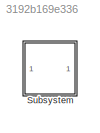
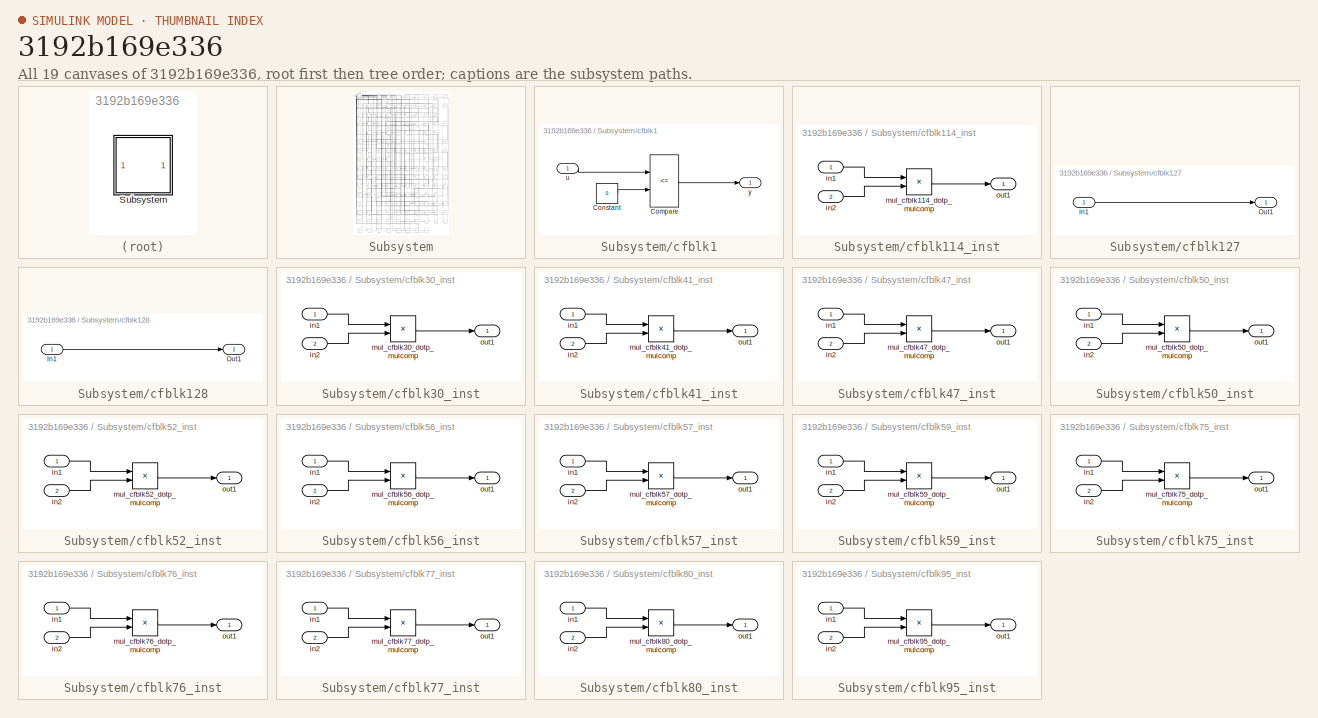
[diagram: thumbnail index - all 19 canvases of the model, root first then tree order]
MODEL slx_3192b169e336
KIND model
CONFIG AbsTol = auto
CONFIG EnableMultiTasking = off
CONFIG FixedStep = auto
CONFIG MaxStep = auto
CONFIG MinStep = auto
CONFIG RelTol = 1e-3
CONFIG SampleTimeConstraint = Unconstrained
CONFIG SolverName = VariableStepAuto
CONFIG StartTime = 0.0
CONFIG StopTime = 10.0
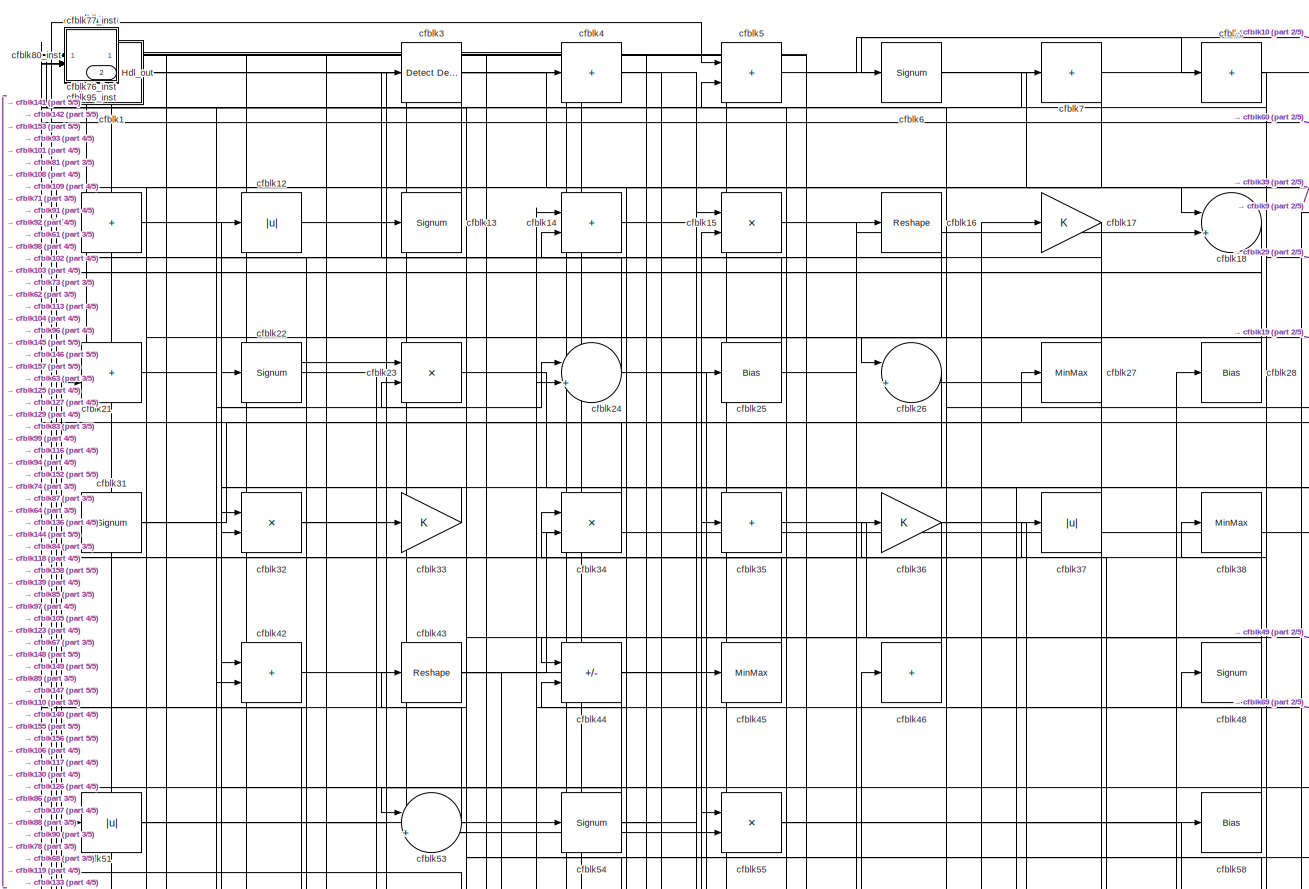
[diagram: Subsystem - part 1/5, full width, top band]
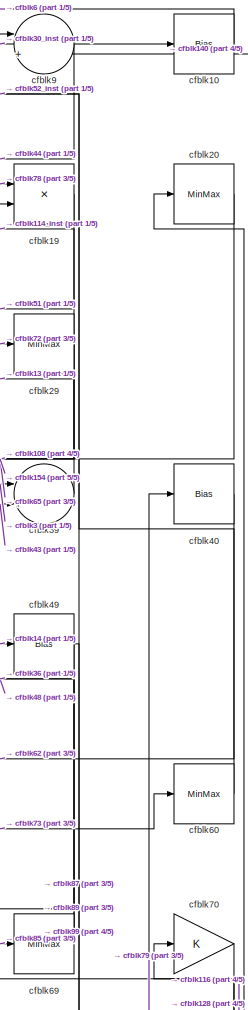
[diagram: Subsystem - part 2/5, top right region]
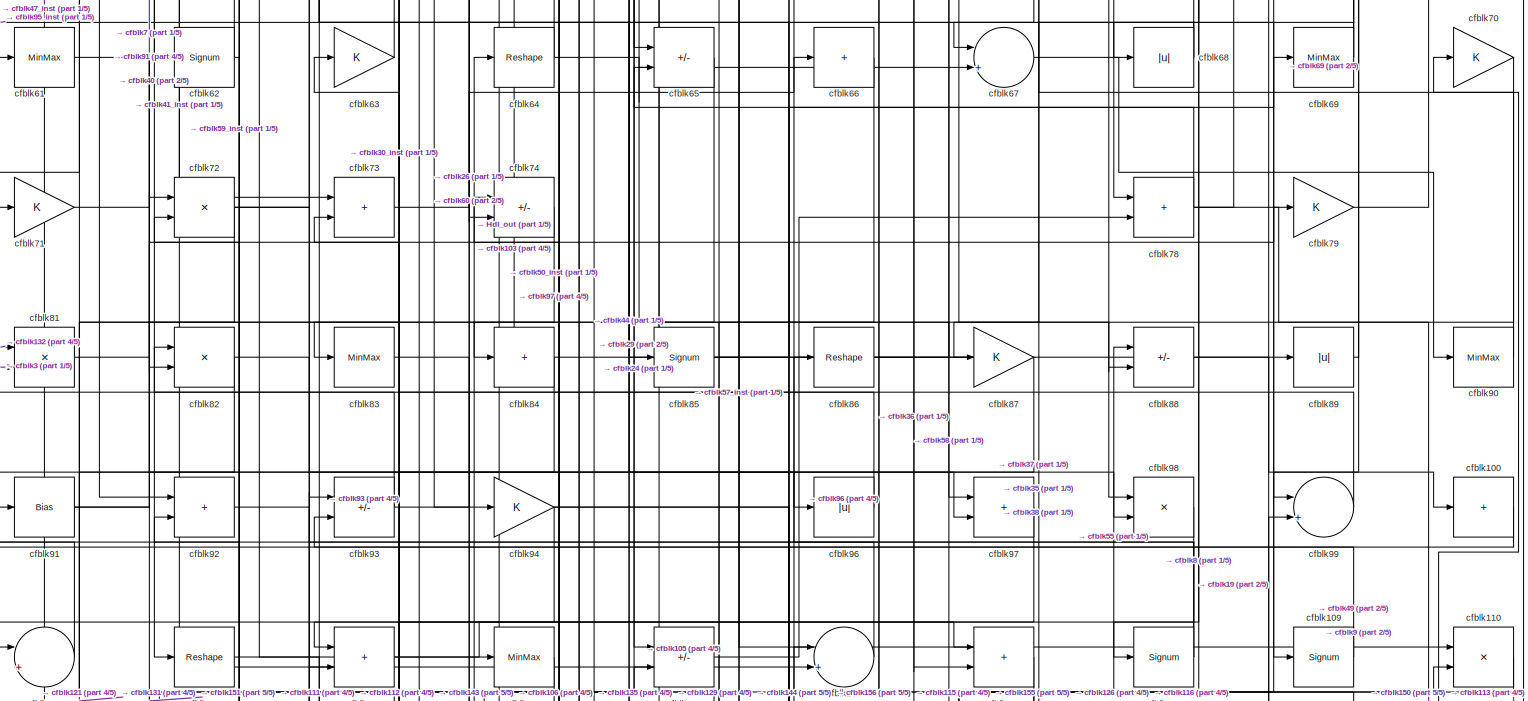
[diagram: Subsystem - part 3/5, full width, middle band]
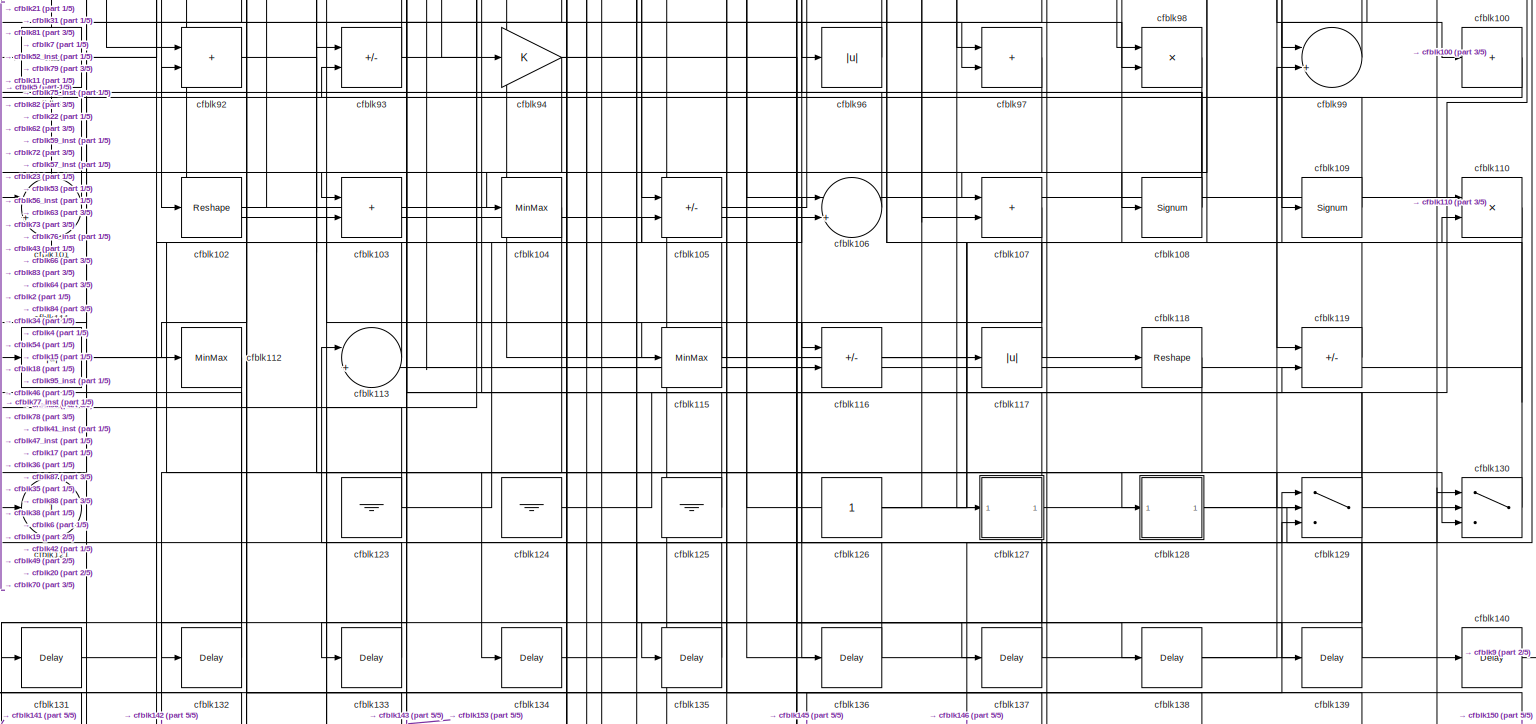
[diagram: Subsystem - part 4/5, full width, bottom band]
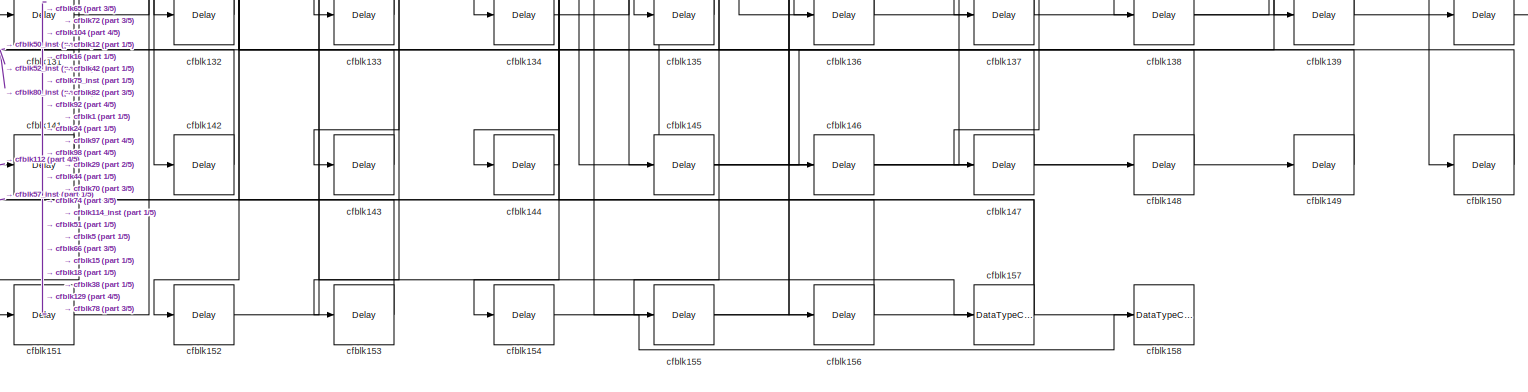
[diagram: Subsystem - part 5/5, full width, bottom band]
BLOCK [SubSystem] Subsystem
BLOCK [Outport] Subsystem/Hdl_out
  OutDataTypeStr = uint8
  Port = 2
  SampleTime = 1
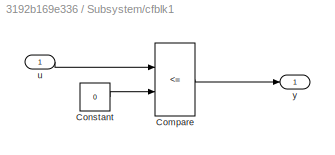
BLOCK [SubSystem] Subsystem/cfblk1
BLOCK [RelationalOperator] Subsystem/cfblk1/Compare
  Operator = <=
  OutDataTypeStr = fixdt(0, 8)
BLOCK [Constant] Subsystem/cfblk1/Constant
  DisableCoverage = on
  OutDataTypeStr = Inherit: Inherit via back propagation
  PreserveConstantTs = on
  SampleTime = -1
  Value = 0
BLOCK [Inport] Subsystem/cfblk1/u
  OutDataTypeStr = uint8
  SampleTime = 1
BLOCK [Outport] Subsystem/cfblk1/y
  SampleTime = 1
BLOCK [Bias] Subsystem/cfblk10
  Bias = 0.0
  SaturateOnIntegerOverflow = off
BLOCK [Sum] Subsystem/cfblk100
  IconShape = rectangular
  Inputs = +
  OutDataTypeStr = uint8
BLOCK [Sum] Subsystem/cfblk101
  Inputs = |++
  OutDataTypeStr = uint8
BLOCK [Reshape] Subsystem/cfblk102
BLOCK [Sum] Subsystem/cfblk103
  IconShape = rectangular
  OutDataTypeStr = uint8
BLOCK [MinMax] Subsystem/cfblk104
  OutDataTypeStr = uint8
BLOCK [Sum] Subsystem/cfblk105
  IconShape = rectangular
  Inputs = +-
  OutDataTypeStr = uint8
BLOCK [Sum] Subsystem/cfblk106
  Inputs = |++
  OutDataTypeStr = uint8
BLOCK [Sum] Subsystem/cfblk107
  IconShape = rectangular
  OutDataTypeStr = uint8
BLOCK [Signum] Subsystem/cfblk108
BLOCK [Signum] Subsystem/cfblk109
BLOCK [Sum] Subsystem/cfblk11
  IconShape = rectangular
  Inputs = +
  OutDataTypeStr = uint8
BLOCK [Product] Subsystem/cfblk110
  Inputs = */
  OutDataTypeStr = uint8
  RndMeth = Zero
  SaturateOnIntegerOverflow = on
BLOCK [Abs] Subsystem/cfblk111
  OutDataTypeStr = uint8
  SaturateOnIntegerOverflow = off
BLOCK [MinMax] Subsystem/cfblk112
  OutDataTypeStr = uint8
BLOCK [Sum] Subsystem/cfblk113
  Inputs = |++
  OutDataTypeStr = uint8
BLOCK [SubSystem] Subsystem/cfblk114_inst
BLOCK [Inport] Subsystem/cfblk114_inst/in1
  OutDataTypeStr = uint8
  SampleTime = 1
BLOCK [Inport] Subsystem/cfblk114_inst/in2
  OutDataTypeStr = uint8
  Port = 2
  SampleTime = 1
BLOCK [Product] Subsystem/cfblk114_inst/mul_cfblk114_dotp_mulcomp
  Inputs = **
  OutDataTypeStr = uint8
  SampleTime = 1
BLOCK [Outport] Subsystem/cfblk114_inst/out1
  OutDataTypeStr = uint8
  SampleTime = 1
BLOCK [MinMax] Subsystem/cfblk115
  OutDataTypeStr = uint8
BLOCK [Sum] Subsystem/cfblk116
  IconShape = rectangular
  Inputs = +-
  OutDataTypeStr = uint8
BLOCK [Abs] Subsystem/cfblk117
  OutDataTypeStr = uint8
  SaturateOnIntegerOverflow = off
BLOCK [Reshape] Subsystem/cfblk118
BLOCK [Sum] Subsystem/cfblk119
  IconShape = rectangular
  Inputs = +-
  OutDataTypeStr = uint8
BLOCK [Abs] Subsystem/cfblk12
  OutDataTypeStr = uint8
  SaturateOnIntegerOverflow = off
BLOCK [Outport] Subsystem/cfblk121
  OutDataTypeStr = uint8
  SampleTime = 1
  VectorParamsAs1DForOutWhenUnconnected = off
BLOCK [Ground] Subsystem/cfblk123
BLOCK [Ground] Subsystem/cfblk124
BLOCK [Ground] Subsystem/cfblk125
BLOCK [Constant] Subsystem/cfblk126
  OutDataTypeStr = uint8
  SampleTime = -1
BLOCK [SubSystem] Subsystem/cfblk127
BLOCK [Inport] Subsystem/cfblk127/In1
  OutDataTypeStr = uint8
  PortDimensions = 1
  SampleTime = 1
BLOCK [Outport] Subsystem/cfblk127/Out1
  SampleTime = 1
BLOCK [SubSystem] Subsystem/cfblk128
BLOCK [Inport] Subsystem/cfblk128/In1
  OutDataTypeStr = uint8
  PortDimensions = 1
  SampleTime = 1
BLOCK [Outport] Subsystem/cfblk128/Out1
  SampleTime = 1
BLOCK [Switch] Subsystem/cfblk129
  InputSameDT = off
  OutDataTypeStr = uint8
  SaturateOnIntegerOverflow = off
BLOCK [Signum] Subsystem/cfblk13
BLOCK [Switch] Subsystem/cfblk130
  InputSameDT = off
  OutDataTypeStr = uint8
  SaturateOnIntegerOverflow = off
BLOCK [Delay] Subsystem/cfblk131
  InputPortMap = u0
  SampleTime = 1
BLOCK [Delay] Subsystem/cfblk132
  InputPortMap = u0
  SampleTime = 1
BLOCK [Delay] Subsystem/cfblk133
  InputPortMap = u0
  SampleTime = 1
BLOCK [Delay] Subsystem/cfblk134
  InputPortMap = u0
  SampleTime = 1
BLOCK [Delay] Subsystem/cfblk135
  InputPortMap = u0
  SampleTime = 1
BLOCK [Delay] Subsystem/cfblk136
  InputPortMap = u0
  SampleTime = 1
BLOCK [Delay] Subsystem/cfblk137
  InputPortMap = u0
  SampleTime = 1
BLOCK [Delay] Subsystem/cfblk138
  InputPortMap = u0
  SampleTime = 1
BLOCK [Delay] Subsystem/cfblk139
  InputPortMap = u0
  SampleTime = 1
BLOCK [Sum] Subsystem/cfblk14
  IconShape = rectangular
  OutDataTypeStr = uint8
BLOCK [Delay] Subsystem/cfblk140
  InputPortMap = u0
  SampleTime = 1
BLOCK [Delay] Subsystem/cfblk141
  InputPortMap = u0
  SampleTime = 1
BLOCK [Delay] Subsystem/cfblk142
  InputPortMap = u0
  SampleTime = 1
BLOCK [Delay] Subsystem/cfblk143
  InputPortMap = u0
  SampleTime = 1
BLOCK [Delay] Subsystem/cfblk144
  InputPortMap = u0
  SampleTime = 1
BLOCK [Delay] Subsystem/cfblk145
  InputPortMap = u0
  SampleTime = 1
BLOCK [Delay] Subsystem/cfblk146
  InputPortMap = u0
  SampleTime = 1
BLOCK [Delay] Subsystem/cfblk147
  InputPortMap = u0
  SampleTime = 1
BLOCK [Delay] Subsystem/cfblk148
  InputPortMap = u0
  SampleTime = 1
BLOCK [Delay] Subsystem/cfblk149
  InputPortMap = u0
  SampleTime = 1
BLOCK [Product] Subsystem/cfblk15
  Inputs = */
  OutDataTypeStr = uint8
  RndMeth = Zero
  SaturateOnIntegerOverflow = on
BLOCK [Delay] Subsystem/cfblk150
  InputPortMap = u0
  SampleTime = 1
BLOCK [Delay] Subsystem/cfblk151
  InputPortMap = u0
  SampleTime = 1
BLOCK [Delay] Subsystem/cfblk152
  InputPortMap = u0
  SampleTime = 1
BLOCK [Delay] Subsystem/cfblk153
  InputPortMap = u0
  SampleTime = 1
BLOCK [Delay] Subsystem/cfblk154
  InputPortMap = u0
  SampleTime = 1
BLOCK [Delay] Subsystem/cfblk155
  InputPortMap = u0
  SampleTime = 1
BLOCK [Delay] Subsystem/cfblk156
  InputPortMap = u0
  SampleTime = 1
BLOCK [DataTypeConversion] Subsystem/cfblk157
  OutDataTypeStr = uint8
  RndMeth = Floor
  SaturateOnIntegerOverflow = off
BLOCK [DataTypeConversion] Subsystem/cfblk158
  OutDataTypeStr = uint8
  RndMeth = Floor
  SaturateOnIntegerOverflow = off
BLOCK [Reshape] Subsystem/cfblk16
BLOCK [Gain] Subsystem/cfblk17
  OutDataTypeStr = uint8
BLOCK [Sum] Subsystem/cfblk18
  Inputs = |++
  OutDataTypeStr = uint8
BLOCK [Product] Subsystem/cfblk19
  Inputs = */
  OutDataTypeStr = uint8
  RndMeth = Zero
  SaturateOnIntegerOverflow = on
BLOCK [Constant] Subsystem/cfblk2
  OutDataTypeStr = uint8
  SampleTime = 1
  Value = 0
BLOCK [MinMax] Subsystem/cfblk20
  OutDataTypeStr = uint8
BLOCK [Sum] Subsystem/cfblk21
  IconShape = rectangular
  OutDataTypeStr = uint8
BLOCK [Signum] Subsystem/cfblk22
BLOCK [Product] Subsystem/cfblk23
  Inputs = */
  OutDataTypeStr = uint8
  RndMeth = Zero
  SaturateOnIntegerOverflow = on
BLOCK [Sum] Subsystem/cfblk24
  Inputs = |++
  OutDataTypeStr = uint8
BLOCK [Bias] Subsystem/cfblk25
  Bias = 0.0
  SaturateOnIntegerOverflow = off
BLOCK [Sum] Subsystem/cfblk26
  Inputs = |++
  OutDataTypeStr = uint8
BLOCK [MinMax] Subsystem/cfblk27
  OutDataTypeStr = uint8
BLOCK [Bias] Subsystem/cfblk28
  Bias = 0.0
  SaturateOnIntegerOverflow = off
BLOCK [MinMax] Subsystem/cfblk29
  OutDataTypeStr = uint8
BLOCK [Reference] Subsystem/cfblk3  REF=simulink/Logic and Bit
Operations/Detect
Decrease
  LibrarySourceBlock = hdlsllib/Logic and Bit\nOperations/Detect\nDecrease
  SourceBlock = simulink/Logic and Bit\nOperations/Detect\nDecrease
  SourceType = Detect Decrease
BLOCK [SubSystem] Subsystem/cfblk30_inst
BLOCK [Inport] Subsystem/cfblk30_inst/in1
  OutDataTypeStr = uint8
  SampleTime = 1
BLOCK [Inport] Subsystem/cfblk30_inst/in2
  OutDataTypeStr = uint8
  Port = 2
  SampleTime = 1
BLOCK [Product] Subsystem/cfblk30_inst/mul_cfblk30_dotp_mulcomp
  Inputs = **
  OutDataTypeStr = uint8
  SampleTime = 1
BLOCK [Outport] Subsystem/cfblk30_inst/out1
  OutDataTypeStr = uint8
  SampleTime = 1
BLOCK [Signum] Subsystem/cfblk31
BLOCK [Product] Subsystem/cfblk32
  Inputs = */
  OutDataTypeStr = uint8
  RndMeth = Zero
  SaturateOnIntegerOverflow = on
BLOCK [Gain] Subsystem/cfblk33
  OutDataTypeStr = uint8
BLOCK [Product] Subsystem/cfblk34
  Inputs = */
  OutDataTypeStr = uint8
  RndMeth = Zero
  SaturateOnIntegerOverflow = on
BLOCK [Sum] Subsystem/cfblk35
  IconShape = rectangular
  Inputs = +
  OutDataTypeStr = uint8
BLOCK [Gain] Subsystem/cfblk36
  OutDataTypeStr = uint8
BLOCK [Abs] Subsystem/cfblk37
  OutDataTypeStr = uint8
  SaturateOnIntegerOverflow = off
BLOCK [MinMax] Subsystem/cfblk38
  OutDataTypeStr = uint8
BLOCK [Sum] Subsystem/cfblk39
  Inputs = |++
  OutDataTypeStr = uint8
BLOCK [Sum] Subsystem/cfblk4
  IconShape = rectangular
  Inputs = +
  OutDataTypeStr = uint8
BLOCK [Bias] Subsystem/cfblk40
  Bias = 0.0
  SaturateOnIntegerOverflow = off
BLOCK [SubSystem] Subsystem/cfblk41_inst
BLOCK [Inport] Subsystem/cfblk41_inst/in1
  OutDataTypeStr = uint8
  SampleTime = 1
BLOCK [Inport] Subsystem/cfblk41_inst/in2
  OutDataTypeStr = uint8
  Port = 2
  SampleTime = 1
BLOCK [Product] Subsystem/cfblk41_inst/mul_cfblk41_dotp_mulcomp
  Inputs = **
  OutDataTypeStr = uint8
  SampleTime = 1
BLOCK [Outport] Subsystem/cfblk41_inst/out1
  OutDataTypeStr = uint8
  SampleTime = 1
BLOCK [Sum] Subsystem/cfblk42
  IconShape = rectangular
  OutDataTypeStr = uint8
BLOCK [Reshape] Subsystem/cfblk43
BLOCK [Sum] Subsystem/cfblk44
  IconShape = rectangular
  Inputs = +-
  OutDataTypeStr = uint8
BLOCK [MinMax] Subsystem/cfblk45
  OutDataTypeStr = uint8
BLOCK [Sum] Subsystem/cfblk46
  IconShape = rectangular
  Inputs = +
  OutDataTypeStr = uint8
BLOCK [SubSystem] Subsystem/cfblk47_inst
BLOCK [Inport] Subsystem/cfblk47_inst/in1
  OutDataTypeStr = uint8
  SampleTime = 1
BLOCK [Inport] Subsystem/cfblk47_inst/in2
  OutDataTypeStr = uint8
  Port = 2
  SampleTime = 1
BLOCK [Product] Subsystem/cfblk47_inst/mul_cfblk47_dotp_mulcomp
  Inputs = **
  OutDataTypeStr = uint8
  SampleTime = 1
BLOCK [Outport] Subsystem/cfblk47_inst/out1
  OutDataTypeStr = uint8
  SampleTime = 1
BLOCK [Signum] Subsystem/cfblk48
BLOCK [Bias] Subsystem/cfblk49
  Bias = 0.0
  SaturateOnIntegerOverflow = off
BLOCK [Sum] Subsystem/cfblk5
  IconShape = rectangular
  OutDataTypeStr = uint8
BLOCK [SubSystem] Subsystem/cfblk50_inst
BLOCK [Inport] Subsystem/cfblk50_inst/in1
  OutDataTypeStr = uint8
  SampleTime = 1
BLOCK [Inport] Subsystem/cfblk50_inst/in2
  OutDataTypeStr = uint8
  Port = 2
  SampleTime = 1
BLOCK [Product] Subsystem/cfblk50_inst/mul_cfblk50_dotp_mulcomp
  Inputs = **
  OutDataTypeStr = uint8
  SampleTime = 1
BLOCK [Outport] Subsystem/cfblk50_inst/out1
  OutDataTypeStr = uint8
  SampleTime = 1
BLOCK [Abs] Subsystem/cfblk51
  OutDataTypeStr = uint8
  SaturateOnIntegerOverflow = off
BLOCK [SubSystem] Subsystem/cfblk52_inst
BLOCK [Inport] Subsystem/cfblk52_inst/in1
  OutDataTypeStr = uint8
  SampleTime = 1
BLOCK [Inport] Subsystem/cfblk52_inst/in2
  OutDataTypeStr = uint8
  Port = 2
  SampleTime = 1
BLOCK [Product] Subsystem/cfblk52_inst/mul_cfblk52_dotp_mulcomp
  Inputs = **
  OutDataTypeStr = uint8
  SampleTime = 1
BLOCK [Outport] Subsystem/cfblk52_inst/out1
  OutDataTypeStr = uint8
  SampleTime = 1
BLOCK [Sum] Subsystem/cfblk53
  Inputs = |++
  OutDataTypeStr = uint8
BLOCK [Signum] Subsystem/cfblk54
BLOCK [Product] Subsystem/cfblk55
  Inputs = */
  OutDataTypeStr = uint8
  RndMeth = Zero
  SaturateOnIntegerOverflow = on
BLOCK [SubSystem] Subsystem/cfblk56_inst
BLOCK [Inport] Subsystem/cfblk56_inst/in1
  OutDataTypeStr = uint8
  SampleTime = 1
BLOCK [Inport] Subsystem/cfblk56_inst/in2
  OutDataTypeStr = uint8
  Port = 2
  SampleTime = 1
BLOCK [Product] Subsystem/cfblk56_inst/mul_cfblk56_dotp_mulcomp
  Inputs = **
  OutDataTypeStr = uint8
  SampleTime = 1
BLOCK [Outport] Subsystem/cfblk56_inst/out1
  OutDataTypeStr = uint8
  SampleTime = 1
BLOCK [SubSystem] Subsystem/cfblk57_inst
BLOCK [Inport] Subsystem/cfblk57_inst/in1
  OutDataTypeStr = uint8
  SampleTime = 1
BLOCK [Inport] Subsystem/cfblk57_inst/in2
  OutDataTypeStr = uint8
  Port = 2
  SampleTime = 1
BLOCK [Product] Subsystem/cfblk57_inst/mul_cfblk57_dotp_mulcomp
  Inputs = **
  OutDataTypeStr = uint8
  SampleTime = 1
BLOCK [Outport] Subsystem/cfblk57_inst/out1
  OutDataTypeStr = uint8
  SampleTime = 1
BLOCK [Bias] Subsystem/cfblk58
  Bias = 0.0
  SaturateOnIntegerOverflow = off
BLOCK [SubSystem] Subsystem/cfblk59_inst
BLOCK [Inport] Subsystem/cfblk59_inst/in1
  OutDataTypeStr = uint8
  SampleTime = 1
BLOCK [Inport] Subsystem/cfblk59_inst/in2
  OutDataTypeStr = uint8
  Port = 2
  SampleTime = 1
BLOCK [Product] Subsystem/cfblk59_inst/mul_cfblk59_dotp_mulcomp
  Inputs = **
  OutDataTypeStr = uint8
  SampleTime = 1
BLOCK [Outport] Subsystem/cfblk59_inst/out1
  OutDataTypeStr = uint8
  SampleTime = 1
BLOCK [Signum] Subsystem/cfblk6
BLOCK [MinMax] Subsystem/cfblk60
  OutDataTypeStr = uint8
BLOCK [MinMax] Subsystem/cfblk61
  OutDataTypeStr = uint8
BLOCK [Signum] Subsystem/cfblk62
BLOCK [Gain] Subsystem/cfblk63
  OutDataTypeStr = uint8
BLOCK [Reshape] Subsystem/cfblk64
BLOCK [Sum] Subsystem/cfblk65
  IconShape = rectangular
  Inputs = +-
  OutDataTypeStr = uint8
BLOCK [Sum] Subsystem/cfblk66
  IconShape = rectangular
  Inputs = +
  OutDataTypeStr = uint8
BLOCK [Sum] Subsystem/cfblk67
  Inputs = |++
  OutDataTypeStr = uint8
BLOCK [Abs] Subsystem/cfblk68
  OutDataTypeStr = uint8
  SaturateOnIntegerOverflow = off
BLOCK [MinMax] Subsystem/cfblk69
  OutDataTypeStr = uint8
BLOCK [Sum] Subsystem/cfblk7
  IconShape = rectangular
  Inputs = +
  OutDataTypeStr = uint8
BLOCK [Gain] Subsystem/cfblk70
  OutDataTypeStr = uint8
BLOCK [Gain] Subsystem/cfblk71
  OutDataTypeStr = uint8
BLOCK [Product] Subsystem/cfblk72
  Inputs = */
  OutDataTypeStr = uint8
  RndMeth = Zero
  SaturateOnIntegerOverflow = on
BLOCK [Sum] Subsystem/cfblk73
  IconShape = rectangular
  OutDataTypeStr = uint8
BLOCK [Sum] Subsystem/cfblk74
  IconShape = rectangular
  Inputs = +-
  OutDataTypeStr = uint8
BLOCK [SubSystem] Subsystem/cfblk75_inst
BLOCK [Inport] Subsystem/cfblk75_inst/in1
  OutDataTypeStr = uint8
  SampleTime = 1
BLOCK [Inport] Subsystem/cfblk75_inst/in2
  OutDataTypeStr = uint8
  Port = 2
  SampleTime = 1
BLOCK [Product] Subsystem/cfblk75_inst/mul_cfblk75_dotp_mulcomp
  Inputs = **
  OutDataTypeStr = uint8
  SampleTime = 1
BLOCK [Outport] Subsystem/cfblk75_inst/out1
  OutDataTypeStr = uint8
  SampleTime = 1
BLOCK [SubSystem] Subsystem/cfblk76_inst
BLOCK [Inport] Subsystem/cfblk76_inst/in1
  OutDataTypeStr = uint8
  SampleTime = 1
BLOCK [Inport] Subsystem/cfblk76_inst/in2
  OutDataTypeStr = uint8
  Port = 2
  SampleTime = 1
BLOCK [Product] Subsystem/cfblk76_inst/mul_cfblk76_dotp_mulcomp
  Inputs = **
  OutDataTypeStr = uint8
  SampleTime = 1
BLOCK [Outport] Subsystem/cfblk76_inst/out1
  OutDataTypeStr = uint8
  SampleTime = 1
BLOCK [SubSystem] Subsystem/cfblk77_inst
BLOCK [Inport] Subsystem/cfblk77_inst/in1
  OutDataTypeStr = uint8
  SampleTime = 1
BLOCK [Inport] Subsystem/cfblk77_inst/in2
  OutDataTypeStr = uint8
  Port = 2
  SampleTime = 1
BLOCK [Product] Subsystem/cfblk77_inst/mul_cfblk77_dotp_mulcomp
  Inputs = **
  OutDataTypeStr = uint8
  SampleTime = 1
BLOCK [Outport] Subsystem/cfblk77_inst/out1
  OutDataTypeStr = uint8
  SampleTime = 1
BLOCK [Sum] Subsystem/cfblk78
  IconShape = rectangular
  OutDataTypeStr = uint8
BLOCK [Gain] Subsystem/cfblk79
  OutDataTypeStr = uint8
BLOCK [Sum] Subsystem/cfblk8
  IconShape = rectangular
  Inputs = +
  OutDataTypeStr = uint8
BLOCK [SubSystem] Subsystem/cfblk80_inst
BLOCK [Inport] Subsystem/cfblk80_inst/in1
  OutDataTypeStr = uint8
  SampleTime = 1
BLOCK [Inport] Subsystem/cfblk80_inst/in2
  OutDataTypeStr = uint8
  Port = 2
  SampleTime = 1
BLOCK [Product] Subsystem/cfblk80_inst/mul_cfblk80_dotp_mulcomp
  Inputs = **
  OutDataTypeStr = uint8
  SampleTime = 1
BLOCK [Outport] Subsystem/cfblk80_inst/out1
  OutDataTypeStr = uint8
  SampleTime = 1
BLOCK [Product] Subsystem/cfblk81
  Inputs = */
  OutDataTypeStr = uint8
  RndMeth = Zero
  SaturateOnIntegerOverflow = on
BLOCK [Product] Subsystem/cfblk82
  Inputs = */
  OutDataTypeStr = uint8
  RndMeth = Zero
  SaturateOnIntegerOverflow = on
BLOCK [MinMax] Subsystem/cfblk83
  OutDataTypeStr = uint8
BLOCK [Sum] Subsystem/cfblk84
  IconShape = rectangular
  Inputs = +
  OutDataTypeStr = uint8
BLOCK [Signum] Subsystem/cfblk85
BLOCK [Reshape] Subsystem/cfblk86
BLOCK [Gain] Subsystem/cfblk87
  OutDataTypeStr = uint8
BLOCK [Sum] Subsystem/cfblk88
  IconShape = rectangular
  Inputs = +-
  OutDataTypeStr = uint8
BLOCK [Abs] Subsystem/cfblk89
  OutDataTypeStr = uint8
  SaturateOnIntegerOverflow = off
BLOCK [Sum] Subsystem/cfblk9
  Inputs = |++
  OutDataTypeStr = uint8
BLOCK [MinMax] Subsystem/cfblk90
  OutDataTypeStr = uint8
BLOCK [Bias] Subsystem/cfblk91
  Bias = 0.0
  SaturateOnIntegerOverflow = off
BLOCK [Sum] Subsystem/cfblk92
  IconShape = rectangular
  OutDataTypeStr = uint8
BLOCK [Sum] Subsystem/cfblk93
  IconShape = rectangular
  Inputs = +-
  OutDataTypeStr = uint8
BLOCK [Gain] Subsystem/cfblk94
  OutDataTypeStr = uint8
BLOCK [SubSystem] Subsystem/cfblk95_inst
BLOCK [Inport] Subsystem/cfblk95_inst/in1
  OutDataTypeStr = uint8
  SampleTime = 1
BLOCK [Inport] Subsystem/cfblk95_inst/in2
  OutDataTypeStr = uint8
  Port = 2
  SampleTime = 1
BLOCK [Product] Subsystem/cfblk95_inst/mul_cfblk95_dotp_mulcomp
  Inputs = **
  OutDataTypeStr = uint8
  SampleTime = 1
BLOCK [Outport] Subsystem/cfblk95_inst/out1
  OutDataTypeStr = uint8
  SampleTime = 1
BLOCK [Abs] Subsystem/cfblk96
  OutDataTypeStr = uint8
  SaturateOnIntegerOverflow = off
BLOCK [Sum] Subsystem/cfblk97
  IconShape = rectangular
  OutDataTypeStr = uint8
BLOCK [Product] Subsystem/cfblk98
  Inputs = */
  OutDataTypeStr = uint8
  RndMeth = Zero
  SaturateOnIntegerOverflow = on
BLOCK [Sum] Subsystem/cfblk99
  Inputs = |++
  OutDataTypeStr = uint8
LINE Subsystem/cfblk100:1 -> Subsystem/cfblk93:2
LINE Subsystem/cfblk101:1 -> Subsystem/cfblk5:1
LINE Subsystem/cfblk102:1 -> Subsystem/cfblk115:1
LINE Subsystem/cfblk103:1 -> Subsystem/cfblk107:1
LINE Subsystem/cfblk104:1 -> Subsystem/cfblk142:1
LINE Subsystem/cfblk105:1 -> Subsystem/cfblk78:2
LINE Subsystem/cfblk106:1 -> Subsystem/cfblk46:1
LINE Subsystem/cfblk107:1 -> Subsystem/cfblk136:1
NET Subsystem/cfblk108:1 -> Subsystem/cfblk21:2, Subsystem/cfblk93:1
LINE Subsystem/cfblk109:1 -> Subsystem/cfblk31:1
LINE Subsystem/cfblk10:1 -> Subsystem/cfblk6:1
LINE Subsystem/cfblk110:1 -> Subsystem/cfblk113:2
NET Subsystem/cfblk111:1 -> Subsystem/cfblk130:3, Subsystem/cfblk86:1
LINE Subsystem/cfblk112:1 -> Subsystem/cfblk141:1
LINE Subsystem/cfblk113:1 -> Subsystem/cfblk22:1
LINE Subsystem/cfblk114_inst/in1:1 -> Subsystem/cfblk114_inst/mul_cfblk114_dotp_mulcomp:1
LINE Subsystem/cfblk114_inst/in2:1 -> Subsystem/cfblk114_inst/mul_cfblk114_dotp_mulcomp:2
LINE Subsystem/cfblk114_inst/mul_cfblk114_dotp_mulcomp:1 -> Subsystem/cfblk114_inst/out1:1
NET Subsystem/cfblk114_inst:1 -> Subsystem/cfblk148:1, Subsystem/cfblk149:1, Subsystem/cfblk23:1
LINE Subsystem/cfblk115:1 -> Subsystem/cfblk63:1
NET Subsystem/cfblk116:1 -> Subsystem/cfblk19:2, Subsystem/cfblk70:1
LINE Subsystem/cfblk117:1 -> Subsystem/cfblk47_inst:1
LINE Subsystem/cfblk118:1 -> Subsystem/cfblk134:1
LINE Subsystem/cfblk119:1 -> Subsystem/cfblk38:1
LINE Subsystem/cfblk11:1 -> Subsystem/cfblk102:1
NET Subsystem/cfblk123:1 -> Subsystem/cfblk15:2, Subsystem/cfblk77_inst:1
LINE Subsystem/cfblk124:1 -> Subsystem/cfblk119:2
LINE Subsystem/cfblk125:1 -> Subsystem/cfblk56_inst:2
NET Subsystem/cfblk126:1 -> Subsystem/cfblk110:2, Subsystem/cfblk17:1, Subsystem/cfblk88:1
LINE Subsystem/cfblk127/In1:1 -> Subsystem/cfblk127/Out1:1
NET Subsystem/cfblk127:1 -> Subsystem/cfblk132:1, Subsystem/cfblk53:2
LINE Subsystem/cfblk128/In1:1 -> Subsystem/cfblk128/Out1:1
LINE Subsystem/cfblk128:1 -> Subsystem/cfblk20:1
NET Subsystem/cfblk129:1 -> Subsystem/cfblk135:1, Subsystem/cfblk23:2, Subsystem/cfblk64:1
LINE Subsystem/cfblk12:1 -> Subsystem/cfblk18:1
LINE Subsystem/cfblk130:1 -> Subsystem/cfblk41_inst:1
LINE Subsystem/cfblk131:1 -> Subsystem/cfblk105:2
LINE Subsystem/cfblk132:1 -> Subsystem/cfblk81:1
LINE Subsystem/cfblk133:1 -> Subsystem/cfblk47_inst:2
LINE Subsystem/cfblk134:1 -> Subsystem/cfblk130:1
LINE Subsystem/cfblk135:1 -> Subsystem/cfblk73:2
LINE Subsystem/cfblk136:1 -> Subsystem/cfblk34:1
LINE Subsystem/cfblk137:1 -> Subsystem/cfblk113:1
LINE Subsystem/cfblk138:1 -> Subsystem/cfblk99:2
LINE Subsystem/cfblk139:1 -> Subsystem/cfblk106:1
LINE Subsystem/cfblk13:1 -> Subsystem/cfblk95_inst:1
LINE Subsystem/cfblk140:1 -> Subsystem/cfblk9:2
LINE Subsystem/cfblk141:1 -> Subsystem/cfblk80_inst:2
LINE Subsystem/cfblk142:1 -> Subsystem/cfblk50_inst:1
LINE Subsystem/cfblk143:1 -> Subsystem/cfblk82:1
LINE Subsystem/cfblk144:1 -> Subsystem/cfblk44:2
LINE Subsystem/cfblk145:1 -> Subsystem/cfblk129:1
LINE Subsystem/cfblk146:1 -> Subsystem/cfblk129:3
LINE Subsystem/cfblk147:1 -> Subsystem/cfblk5:2
LINE Subsystem/cfblk148:1 -> Subsystem/cfblk52_inst:2
LINE Subsystem/cfblk149:1 -> Subsystem/cfblk42:1
LINE Subsystem/cfblk14:1 -> Subsystem/cfblk49:1
LINE Subsystem/cfblk150:1 -> Subsystem/cfblk92:2
LINE Subsystem/cfblk151:1 -> Subsystem/cfblk72:1
LINE Subsystem/cfblk152:1 -> Subsystem/cfblk24:2
LINE Subsystem/cfblk153:1 -> Subsystem/cfblk57_inst:1
LINE Subsystem/cfblk154:1 -> Subsystem/cfblk158:1
LINE Subsystem/cfblk155:1 -> Subsystem/cfblk18:2
LINE Subsystem/cfblk156:1 -> Subsystem/cfblk74:1
NET Subsystem/cfblk157:1 -> Subsystem/cfblk12:1, Subsystem/cfblk75_inst:2
LINE Subsystem/cfblk158:1 -> Subsystem/cfblk1:1
LINE Subsystem/cfblk15:1 -> Subsystem/cfblk156:1
LINE Subsystem/cfblk16:1 -> Subsystem/cfblk152:1
LINE Subsystem/cfblk17:1 -> Subsystem/cfblk26:1
LINE Subsystem/cfblk18:1 -> Subsystem/cfblk105:1
LINE Subsystem/cfblk19:1 -> Subsystem/cfblk51:1
LINE Subsystem/cfblk1:1 -> Subsystem/cfblk157:1
LINE Subsystem/cfblk20:1 -> Subsystem/cfblk108:1
LINE Subsystem/cfblk21:1 -> Subsystem/cfblk15:1
LINE Subsystem/cfblk22:1 -> Subsystem/cfblk96:1
LINE Subsystem/cfblk23:1 -> Subsystem/cfblk127:1
NET Subsystem/cfblk24:1 -> Subsystem/cfblk3:1, Subsystem/cfblk59_inst:2, Subsystem/cfblk67:2
NET Subsystem/cfblk25:1 -> Subsystem/cfblk14:2, Subsystem/cfblk16:1
LINE Subsystem/cfblk26:1 -> Subsystem/cfblk74:2
NET Subsystem/cfblk27:1 -> Subsystem/cfblk32:2, Subsystem/cfblk76_inst:1
NET Subsystem/cfblk28:1 -> Subsystem/cfblk114_inst:2, Subsystem/cfblk76_inst:2
NET Subsystem/cfblk29:1 -> Subsystem/cfblk114_inst:1, Subsystem/cfblk154:1, Subsystem/cfblk65:1
NET Subsystem/cfblk2:1 -> Subsystem/cfblk117:1, Subsystem/cfblk21:1, Subsystem/cfblk30_inst:2, Subsystem/cfblk75_inst:1
LINE Subsystem/cfblk30_inst/in1:1 -> Subsystem/cfblk30_inst/mul_cfblk30_dotp_mulcomp:1
LINE Subsystem/cfblk30_inst/in2:1 -> Subsystem/cfblk30_inst/mul_cfblk30_dotp_mulcomp:2
LINE Subsystem/cfblk30_inst/mul_cfblk30_dotp_mulcomp:1 -> Subsystem/cfblk30_inst/out1:1
LINE Subsystem/cfblk30_inst:1 -> Subsystem/cfblk10:1
NET Subsystem/cfblk31:1 -> Subsystem/cfblk27:1, Subsystem/cfblk98:2
LINE Subsystem/cfblk32:1 -> Subsystem/cfblk55:1
LINE Subsystem/cfblk33:1 -> Subsystem/cfblk32:1
LINE Subsystem/cfblk34:1 -> Subsystem/cfblk56_inst:1
LINE Subsystem/cfblk35:1 -> Subsystem/cfblk98:1
NET Subsystem/cfblk36:1 -> Subsystem/cfblk107:2, Subsystem/cfblk84:1, Subsystem/cfblk88:2
NET Subsystem/cfblk37:1 -> Subsystem/cfblk26:2, Subsystem/cfblk67:1
NET Subsystem/cfblk38:1 -> Subsystem/cfblk147:1, Subsystem/cfblk83:1
LINE Subsystem/cfblk39:1 -> Subsystem/cfblk13:1
NET Subsystem/cfblk3:1 -> Subsystem/cfblk39:1, Subsystem/cfblk81:2
LINE Subsystem/cfblk40:1 -> Subsystem/cfblk62:1
LINE Subsystem/cfblk41_inst/in1:1 -> Subsystem/cfblk41_inst/mul_cfblk41_dotp_mulcomp:1
LINE Subsystem/cfblk41_inst/in2:1 -> Subsystem/cfblk41_inst/mul_cfblk41_dotp_mulcomp:2
LINE Subsystem/cfblk41_inst/mul_cfblk41_dotp_mulcomp:1 -> Subsystem/cfblk41_inst/out1:1
NET Subsystem/cfblk41_inst:1 -> Subsystem/cfblk55:2, Subsystem/cfblk73:1
LINE Subsystem/cfblk42:1 -> Subsystem/cfblk109:1
NET Subsystem/cfblk43:1 -> Subsystem/cfblk39:2, Subsystem/cfblk94:1
NET Subsystem/cfblk44:1 -> Subsystem/cfblk71:1, Subsystem/cfblk85:1
LINE Subsystem/cfblk45:1 -> Subsystem/cfblk80_inst:1
LINE Subsystem/cfblk46:1 -> Subsystem/cfblk34:2
LINE Subsystem/cfblk47_inst/in1:1 -> Subsystem/cfblk47_inst/mul_cfblk47_dotp_mulcomp:1
LINE Subsystem/cfblk47_inst/in2:1 -> Subsystem/cfblk47_inst/mul_cfblk47_dotp_mulcomp:2
LINE Subsystem/cfblk47_inst/mul_cfblk47_dotp_mulcomp:1 -> Subsystem/cfblk47_inst/out1:1
NET Subsystem/cfblk47_inst:1 -> Subsystem/cfblk101:2, Subsystem/cfblk89:1
LINE Subsystem/cfblk48:1 -> Subsystem/cfblk41_inst:2
NET Subsystem/cfblk49:1 -> Subsystem/cfblk87:1, Subsystem/cfblk99:1
LINE Subsystem/cfblk4:1 -> Subsystem/cfblk139:1
LINE Subsystem/cfblk50_inst/in1:1 -> Subsystem/cfblk50_inst/mul_cfblk50_dotp_mulcomp:1
LINE Subsystem/cfblk50_inst/in2:1 -> Subsystem/cfblk50_inst/mul_cfblk50_dotp_mulcomp:2
LINE Subsystem/cfblk50_inst/mul_cfblk50_dotp_mulcomp:1 -> Subsystem/cfblk50_inst/out1:1
NET Subsystem/cfblk50_inst:1 -> Subsystem/cfblk33:1, Subsystem/cfblk45:1
NET Subsystem/cfblk51:1 -> Subsystem/cfblk145:1, Subsystem/cfblk146:1
LINE Subsystem/cfblk52_inst/in1:1 -> Subsystem/cfblk52_inst/mul_cfblk52_dotp_mulcomp:1
LINE Subsystem/cfblk52_inst/in2:1 -> Subsystem/cfblk52_inst/mul_cfblk52_dotp_mulcomp:2
LINE Subsystem/cfblk52_inst/mul_cfblk52_dotp_mulcomp:1 -> Subsystem/cfblk52_inst/out1:1
LINE Subsystem/cfblk52_inst:1 -> Subsystem/cfblk92:1
NET Subsystem/cfblk53:1 -> Subsystem/cfblk133:1, Subsystem/cfblk77_inst:2
NET Subsystem/cfblk54:1 -> Subsystem/cfblk25:1, Subsystem/cfblk53:1, Subsystem/cfblk97:2
NET Subsystem/cfblk55:1 -> Subsystem/cfblk28:1, Subsystem/cfblk78:1
LINE Subsystem/cfblk56_inst/in1:1 -> Subsystem/cfblk56_inst/mul_cfblk56_dotp_mulcomp:1
LINE Subsystem/cfblk56_inst/in2:1 -> Subsystem/cfblk56_inst/mul_cfblk56_dotp_mulcomp:2
LINE Subsystem/cfblk56_inst/mul_cfblk56_dotp_mulcomp:1 -> Subsystem/cfblk56_inst/out1:1
LINE Subsystem/cfblk56_inst:1 -> Subsystem/cfblk130:2
LINE Subsystem/cfblk57_inst/in1:1 -> Subsystem/cfblk57_inst/mul_cfblk57_dotp_mulcomp:1
LINE Subsystem/cfblk57_inst/in2:1 -> Subsystem/cfblk57_inst/mul_cfblk57_dotp_mulcomp:2
LINE Subsystem/cfblk57_inst/mul_cfblk57_dotp_mulcomp:1 -> Subsystem/cfblk57_inst/out1:1
LINE Subsystem/cfblk57_inst:1 -> Subsystem/cfblk110:1
LINE Subsystem/cfblk58:1 -> Subsystem/cfblk14:1
LINE Subsystem/cfblk59_inst/in1:1 -> Subsystem/cfblk59_inst/mul_cfblk59_dotp_mulcomp:1
LINE Subsystem/cfblk59_inst/in2:1 -> Subsystem/cfblk59_inst/mul_cfblk59_dotp_mulcomp:2
LINE Subsystem/cfblk59_inst/mul_cfblk59_dotp_mulcomp:1 -> Subsystem/cfblk59_inst/out1:1
LINE Subsystem/cfblk59_inst:1 -> Subsystem/cfblk104:1
LINE Subsystem/cfblk5:1 -> Subsystem/cfblk8:1
LINE Subsystem/cfblk60:1 -> Subsystem/cfblk52_inst:1
LINE Subsystem/cfblk61:1 -> Subsystem/cfblk7:1
NET Subsystem/cfblk62:1 -> Subsystem/cfblk112:1, Subsystem/cfblk59_inst:1
LINE Subsystem/cfblk63:1 -> Subsystem/cfblk30_inst:1
NET Subsystem/cfblk64:1 -> Subsystem/cfblk50_inst:2, Subsystem/cfblk97:1
LINE Subsystem/cfblk65:1 -> Subsystem/cfblk151:1
LINE Subsystem/cfblk66:1 -> Subsystem/cfblk155:1
LINE Subsystem/cfblk67:1 -> Subsystem/cfblk90:1
NET Subsystem/cfblk68:1 -> Subsystem/cfblk61:1, Subsystem/cfblk95_inst:2
NET Subsystem/cfblk69:1 -> Subsystem/cfblk36:1, Subsystem/cfblk48:1
LINE Subsystem/cfblk6:1 -> Subsystem/cfblk119:1
LINE Subsystem/cfblk70:1 -> Subsystem/cfblk144:1
LINE Subsystem/cfblk71:1 -> Subsystem/cfblk24:1
NET Subsystem/cfblk72:1 -> Subsystem/cfblk121:1, Subsystem/cfblk129:2, Subsystem/cfblk29:1
LINE Subsystem/cfblk73:1 -> Subsystem/cfblk60:1
LINE Subsystem/cfblk74:1 -> Subsystem/cfblk82:2
LINE Subsystem/cfblk75_inst/in1:1 -> Subsystem/cfblk75_inst/mul_cfblk75_dotp_mulcomp:1
LINE Subsystem/cfblk75_inst/in2:1 -> Subsystem/cfblk75_inst/mul_cfblk75_dotp_mulcomp:2
LINE Subsystem/cfblk75_inst/mul_cfblk75_dotp_mulcomp:1 -> Subsystem/cfblk75_inst/out1:1
LINE Subsystem/cfblk75_inst:1 -> Subsystem/cfblk103:2
LINE Subsystem/cfblk76_inst/in1:1 -> Subsystem/cfblk76_inst/mul_cfblk76_dotp_mulcomp:1
LINE Subsystem/cfblk76_inst/in2:1 -> Subsystem/cfblk76_inst/mul_cfblk76_dotp_mulcomp:2
LINE Subsystem/cfblk76_inst/mul_cfblk76_dotp_mulcomp:1 -> Subsystem/cfblk76_inst/out1:1
NET Subsystem/cfblk76_inst:1 -> Subsystem/cfblk116:2, Subsystem/cfblk11:1
LINE Subsystem/cfblk77_inst/in1:1 -> Subsystem/cfblk77_inst/mul_cfblk77_dotp_mulcomp:1
LINE Subsystem/cfblk77_inst/in2:1 -> Subsystem/cfblk77_inst/mul_cfblk77_dotp_mulcomp:2
LINE Subsystem/cfblk77_inst/mul_cfblk77_dotp_mulcomp:1 -> Subsystem/cfblk77_inst/out1:1
LINE Subsystem/cfblk77_inst:1 -> Subsystem/cfblk118:1
NET Subsystem/cfblk78:1 -> Subsystem/cfblk150:1, Subsystem/cfblk19:1, Subsystem/cfblk65:2
LINE Subsystem/cfblk79:1 -> Subsystem/cfblk40:1
LINE Subsystem/cfblk7:1 -> Subsystem/cfblk91:1
LINE Subsystem/cfblk80_inst/in1:1 -> Subsystem/cfblk80_inst/mul_cfblk80_dotp_mulcomp:1
LINE Subsystem/cfblk80_inst/in2:1 -> Subsystem/cfblk80_inst/mul_cfblk80_dotp_mulcomp:2
LINE Subsystem/cfblk80_inst/mul_cfblk80_dotp_mulcomp:1 -> Subsystem/cfblk80_inst/out1:1
LINE Subsystem/cfblk80_inst:1 -> Subsystem/cfblk54:1
LINE Subsystem/cfblk81:1 -> Subsystem/cfblk37:1
NET Subsystem/cfblk82:1 -> Subsystem/cfblk106:2, Subsystem/cfblk131:1
LINE Subsystem/cfblk83:1 -> Subsystem/cfblk116:1
LINE Subsystem/cfblk84:1 -> Subsystem/cfblk111:1
LINE Subsystem/cfblk85:1 -> Subsystem/cfblk69:1
LINE Subsystem/cfblk86:1 -> Subsystem/cfblk58:1
NET Subsystem/cfblk87:1 -> Subsystem/Hdl_out:1, Subsystem/cfblk103:1
LINE Subsystem/cfblk88:1 -> Subsystem/cfblk100:1
LINE Subsystem/cfblk89:1 -> Subsystem/cfblk9:1
LINE Subsystem/cfblk8:1 -> Subsystem/cfblk68:1
LINE Subsystem/cfblk90:1 -> Subsystem/cfblk35:1
NET Subsystem/cfblk91:1 -> Subsystem/cfblk42:2, Subsystem/cfblk79:1
LINE Subsystem/cfblk92:1 -> Subsystem/cfblk128:1
NET Subsystem/cfblk93:1 -> Subsystem/cfblk57_inst:2, Subsystem/cfblk66:1
NET Subsystem/cfblk94:1 -> Subsystem/cfblk101:1, Subsystem/cfblk137:1, Subsystem/cfblk138:1
LINE Subsystem/cfblk95_inst/in1:1 -> Subsystem/cfblk95_inst/mul_cfblk95_dotp_mulcomp:1
LINE Subsystem/cfblk95_inst/in2:1 -> Subsystem/cfblk95_inst/mul_cfblk95_dotp_mulcomp:2
LINE Subsystem/cfblk95_inst/mul_cfblk95_dotp_mulcomp:1 -> Subsystem/cfblk95_inst/out1:1
NET Subsystem/cfblk95_inst:1 -> Subsystem/cfblk140:1, Subsystem/cfblk4:1
LINE Subsystem/cfblk96:1 -> Subsystem/cfblk72:2
LINE Subsystem/cfblk97:1 -> Subsystem/cfblk153:1
LINE Subsystem/cfblk98:1 -> Subsystem/cfblk143:1
LINE Subsystem/cfblk99:1 -> Subsystem/cfblk43:1
LINE Subsystem/cfblk9:1 -> Subsystem/cfblk44:1
note: NET lines group one-source signal fan-out (src -> all destinations, sorted); 1:1 wires keep LINE
